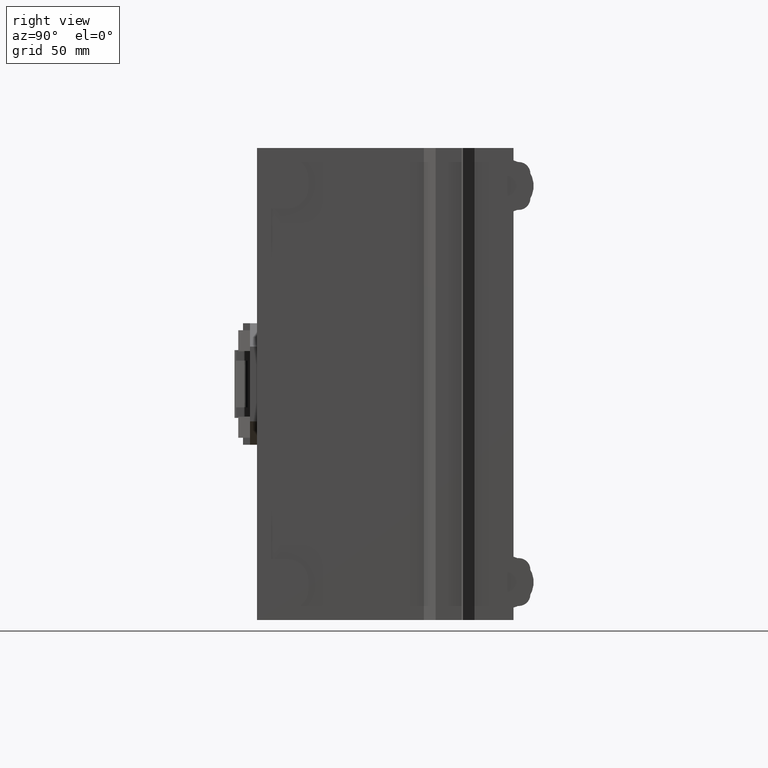
[diagram: clean part render]
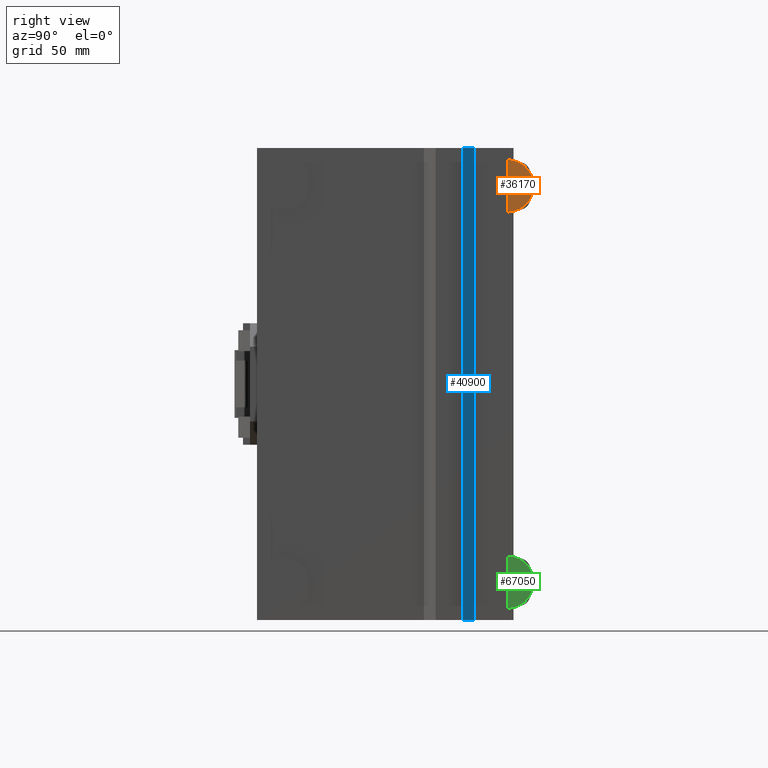
[diagram: same view with three faces highlighted in distinct colors, each labeled with its STEP entity id]
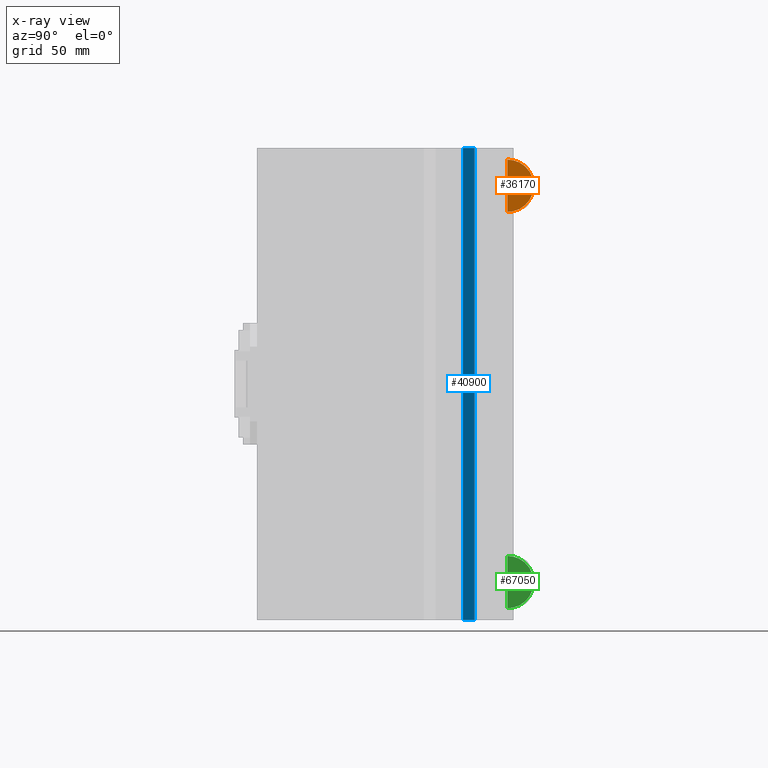
[diagram: x-ray of the same camera — body ghosted, the three highlighted faces saturated]
A machine part, right view with three faces highlighted in distinct colors.
The next image is the same camera in x-ray (body ghosted, the three faces saturated) — at least one of them is partly hidden behind the body in this view.
Their STEP definitions:

[orange] entity #36170 — the highlighted planar face has unit normal (1, -0, -0).
#35410=CARTESIAN_POINT('',(0.,106.15,-157.2565865962));
#35420=DIRECTION('',(-1.,-0.,0.));
#35430=VECTOR('',#35420,1.);
#35440=LINE('',#35410,#35430);
#35450=CARTESIAN_POINT('',(87.4999133662957,106.15,-157.2565865962));
#35460=VERTEX_POINT('',#35450);
#35470=CARTESIAN_POINT('',(65.1000866337043,106.15,-157.2565865962));
#35480=VERTEX_POINT('',#35470);
#35490=EDGE_CURVE('',#35460,#35480,#35440,.T.);
#35940=CARTESIAN_POINT('',(76.3,85.553698092735,-157.2565865962));
#35950=DIRECTION('',(-0.,-1.432187701766E-14,-1.));
#35960=DIRECTION('',(-1.,0.,0.));
#35970=AXIS2_PLACEMENT_3D('',#35940,#35950,#35960);
#35980=PLANE('',#35970);
#35990=CARTESIAN_POINT('',(76.3,106.1940520995,-157.2565865962));
#36000=DIRECTION('',(0.,-1.432187701766E-14,-1.));
#36010=DIRECTION('',(-1.,0.,-0.));
#36020=AXIS2_PLACEMENT_3D('',#35990,#36000,#36010);
#36030=CIRCLE('',#36020,11.2);
#36040=CARTESIAN_POINT('',(87.5,106.1940520995,-157.2565865962));
#36050=VERTEX_POINT('',#36040);
#36060=EDGE_CURVE('',#36050,#35460,#36030,.T.);
#36070=ORIENTED_EDGE('',*,*,#36060,.T.);
#36080=CARTESIAN_POINT('',(65.1,106.1940520995,-157.2565865962));
#36090=VERTEX_POINT('',#36080);
#36100=EDGE_CURVE('',#36090,#36050,#36030,.T.);
#36110=ORIENTED_EDGE('',*,*,#36100,.T.);
#36120=EDGE_CURVE('',#35480,#36090,#36030,.T.);
#36130=ORIENTED_EDGE('',*,*,#36120,.T.);
#36140=ORIENTED_EDGE('',*,*,#35490,.T.);
#36150=EDGE_LOOP('',(#36140,#36130,#36110,#36070));
#36160=FACE_OUTER_BOUND('',#36150,.T.);
#36170=ADVANCED_FACE('',(#36160),#35980,.T.);

[blue] entity #40900 — the highlighted planar face has unit normal (-0.866, -0.5, 0).
#16570=CARTESIAN_POINT('',(92.5,92.084936490486,-158.55));
#16580=VERTEX_POINT('',#16570);
#16630=CARTESIAN_POINT('',(92.5,108.75,-148.928421096719));
#16640=DIRECTION('',(0.,-0.866025403784429,-0.500000000000017));
#16650=VECTOR('',#16640,1.);
#16660=LINE('',#16630,#16650);
#16670=CARTESIAN_POINT('',(92.5,87.1788475772626,-161.382531754718));
#16680=VERTEX_POINT('',#16670);
#16690=EDGE_CURVE('',#16580,#16680,#16660,.T.);
#18040=CARTESIAN_POINT('',(-109.5,87.1788475772627,-161.382531754718));
#18050=VERTEX_POINT('',#18040);
#18170=CARTESIAN_POINT('',(-67.,87.1788475772626,-161.382531754718));
#18180=DIRECTION('',(1.,0.,0.));
#18190=VECTOR('',#18180,1.);
#18200=LINE('',#18170,#18190);
#18210=EDGE_CURVE('',#18050,#16680,#18200,.T.);
#38710=CARTESIAN_POINT('',(-109.5,108.75,-148.928421096719));
#38720=DIRECTION('',(0.,-0.866025403784429,-0.500000000000017));
#38730=VECTOR('',#38720,1.);
#38740=LINE('',#38710,#38730);
#38750=CARTESIAN_POINT('',(-109.5,92.084936490486,-158.55));
#38760=VERTEX_POINT('',#38750);
#38770=EDGE_CURVE('',#38760,#18050,#38740,.T.);
#40740=CARTESIAN_POINT('',(-59.5,92.375,-158.3825317547));
#40750=DIRECTION('',(0.,-0.500000000000017,0.866025403784429));
#40760=DIRECTION('',(-1.,0.,0.));
#40770=AXIS2_PLACEMENT_3D('',#40740,#40750,#40760);
#40780=PLANE('',#40770);
#40790=ORIENTED_EDGE('',*,*,#16690,.T.);
#40800=CARTESIAN_POINT('',(0.,92.084936490486,-158.55));
#40810=DIRECTION('',(1.,-0.,-0.));
#40820=VECTOR('',#40810,1.);
#40830=LINE('',#40800,#40820);
#40840=EDGE_CURVE('',#38760,#16580,#40830,.T.);
#40850=ORIENTED_EDGE('',*,*,#40840,.T.);
#40860=ORIENTED_EDGE('',*,*,#38770,.F.);
#40870=ORIENTED_EDGE('',*,*,#18210,.F.);
#40880=EDGE_LOOP('',(#40870,#40860,#40850,#40790));
#40890=FACE_OUTER_BOUND('',#40880,.T.);
#40900=ADVANCED_FACE('',(#40890),#40780,.F.);

[green] entity #67050 — the highlighted planar face has unit normal (-1, 0, 0).
#66280=CARTESIAN_POINT('',(-104.499913366296,106.15,-157.2565865962));
#66290=VERTEX_POINT('',#66280);
#66440=CARTESIAN_POINT('',(-82.1000866337043,106.15,-157.2565865962));
#66450=VERTEX_POINT('',#66440);
#66480=CARTESIAN_POINT('',(-17.,106.15,-157.2565865962));
#66490=DIRECTION('',(1.,0.,0.));
#66500=VECTOR('',#66490,1.);
#66510=LINE('',#66480,#66500);
#66520=EDGE_CURVE('',#66290,#66450,#66510,.T.);
#66820=CARTESIAN_POINT('',(-93.3,85.553698092735,-157.2565865962));
#66830=DIRECTION('',(-0.,1.432187701766E-14,1.));
#66840=DIRECTION('',(1.,0.,0.));
#66850=AXIS2_PLACEMENT_3D('',#66820,#66830,#66840);
#66860=PLANE('',#66850);
#66870=ORIENTED_EDGE('',*,*,#66520,.F.);
#66880=CARTESIAN_POINT('',(-93.3,106.1940520995,-157.2565865962));
#66890=DIRECTION('',(0.,1.432187701766E-14,1.));
#66900=DIRECTION('',(1.,0.,0.));
#66910=AXIS2_PLACEMENT_3D('',#66880,#66890,#66900);
#66920=CIRCLE('',#66910,11.2);
#66930=CARTESIAN_POINT('',(-82.1,106.1940520995,-157.2565865962));
#66940=VERTEX_POINT('',#66930);
#66950=EDGE_CURVE('',#66450,#66940,#66920,.T.);
#66960=ORIENTED_EDGE('',*,*,#66950,.F.);
#66970=CARTESIAN_POINT('',(-104.5,106.1940520995,-157.2565865962));
#66980=VERTEX_POINT('',#66970);
#66990=EDGE_CURVE('',#66940,#66980,#66920,.T.);
#67000=ORIENTED_EDGE('',*,*,#66990,.F.);
#67010=EDGE_CURVE('',#66980,#66290,#66920,.T.);
#67020=ORIENTED_EDGE('',*,*,#67010,.F.);
#67030=EDGE_LOOP('',(#67020,#67000,#66960,#66870));
#67040=FACE_OUTER_BOUND('',#67030,.T.);
#67050=ADVANCED_FACE('',(#67040),#66860,.F.);